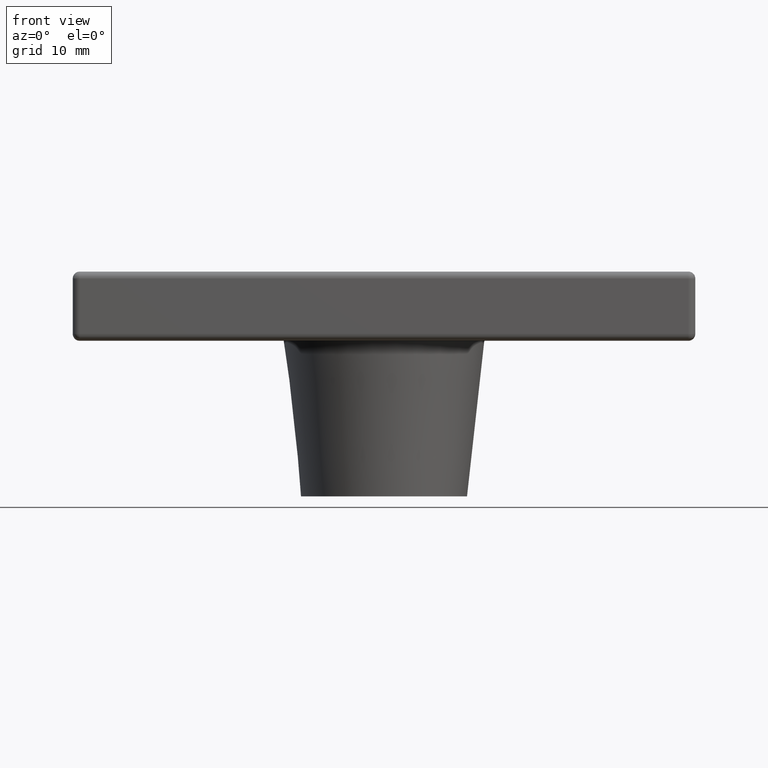
[diagram: clean part render]
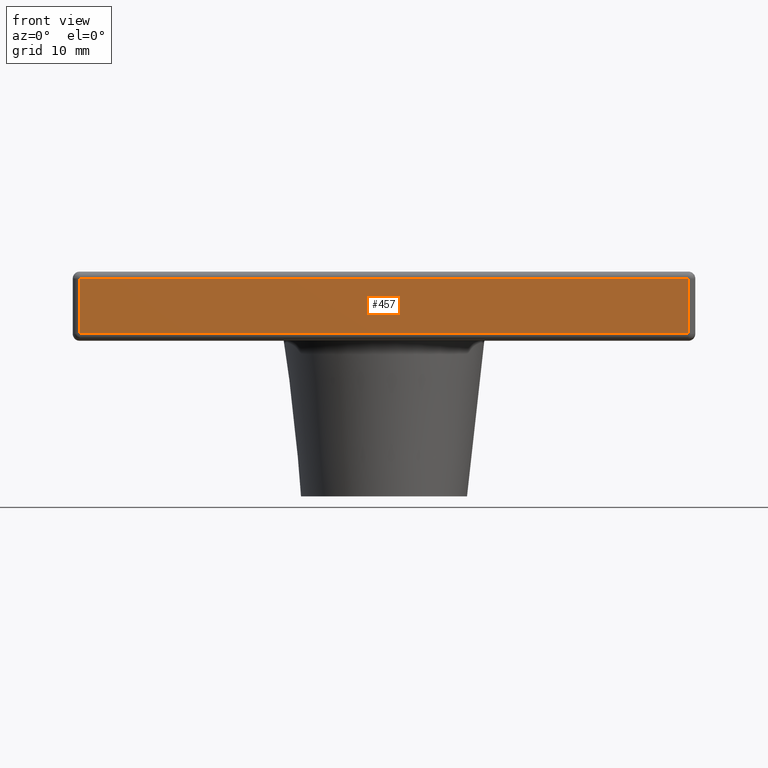
[diagram: same view with one face highlighted and labeled with its STEP entity id]
A machine part, front view. The second image highlights one B-rep face of the part: STEP entity #457.
In plain terms, the highlighted planar face has unit normal (0, -1, 0).
Its self-contained STEP definition (entity closure, byte-faithful):
#23=LINE('',#761,#47);
#24=LINE('',#763,#48);
#25=LINE('',#765,#49);
#26=LINE('',#766,#50);
#47=VECTOR('',#600,87.999999998859);
#48=VECTOR('',#601,7.99999999882149);
#49=VECTOR('',#602,87.9999999988589);
#50=VECTOR('',#603,7.99999999889645);
#73=PLANE('',#506);
#103=FACE_OUTER_BOUND('',#145,.T.);
#145=EDGE_LOOP('',(#327,#328,#329,#330));
#229=VERTEX_POINT('',#759);
#230=VERTEX_POINT('',#760);
#231=VERTEX_POINT('',#762);
#232=VERTEX_POINT('',#764);
#265=EDGE_CURVE('',#229,#230,#23,.T.);
#266=EDGE_CURVE('',#230,#231,#24,.T.);
#267=EDGE_CURVE('',#231,#232,#25,.T.);
#268=EDGE_CURVE('',#232,#229,#26,.T.);
#327=ORIENTED_EDGE('',*,*,#265,.T.);
#328=ORIENTED_EDGE('',*,*,#266,.T.);
#329=ORIENTED_EDGE('',*,*,#267,.T.);
#330=ORIENTED_EDGE('',*,*,#268,.T.);
#457=ADVANCED_FACE('',(#103),#73,.T.);
#506=AXIS2_PLACEMENT_3D('',#758,#598,#599);
#598=DIRECTION('center_axis',(0.,-1.,0.));
#599=DIRECTION('ref_axis',(0.,0.,-1.));
#600=DIRECTION('',(-1.,0.,0.));
#601=DIRECTION('',(0.,0.,-1.));
#602=DIRECTION('',(1.,0.,0.));
#603=DIRECTION('',(0.,0.,1.));
#758=CARTESIAN_POINT('Origin',(-93.1071067811865,-22.5,9.10710678118655));
#759=CARTESIAN_POINT('',(-0.707106781738327,-22.5,8.70710678063477));
#760=CARTESIAN_POINT('',(-88.7071067805973,-22.5,8.7071067805973));
#761=CARTESIAN_POINT('',(-0.70710678118655,-22.5,8.70710678118655));
#762=CARTESIAN_POINT('',(-88.7071067805973,-22.5,0.707106781775804));
#763=CARTESIAN_POINT('',(-88.7071067811865,-22.5,8.70710678118655));
#764=CARTESIAN_POINT('',(-0.707106781738328,-22.5,0.707106781738325));
#765=CARTESIAN_POINT('',(-88.7071067811865,-22.5,0.707106781186548));
#766=CARTESIAN_POINT('',(-0.70710678118655,-22.5,0.70710678118655));